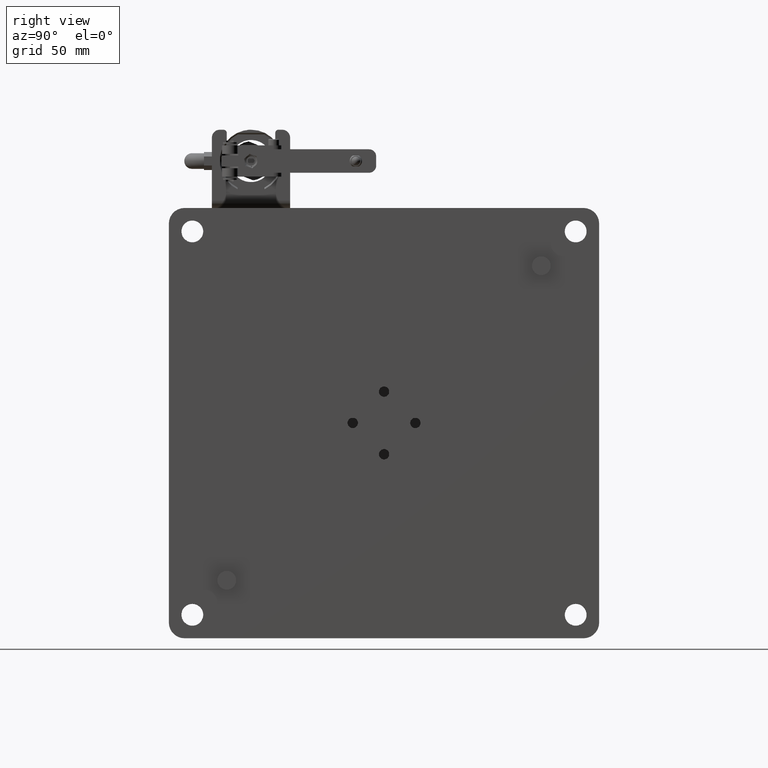
[diagram: clean part render]
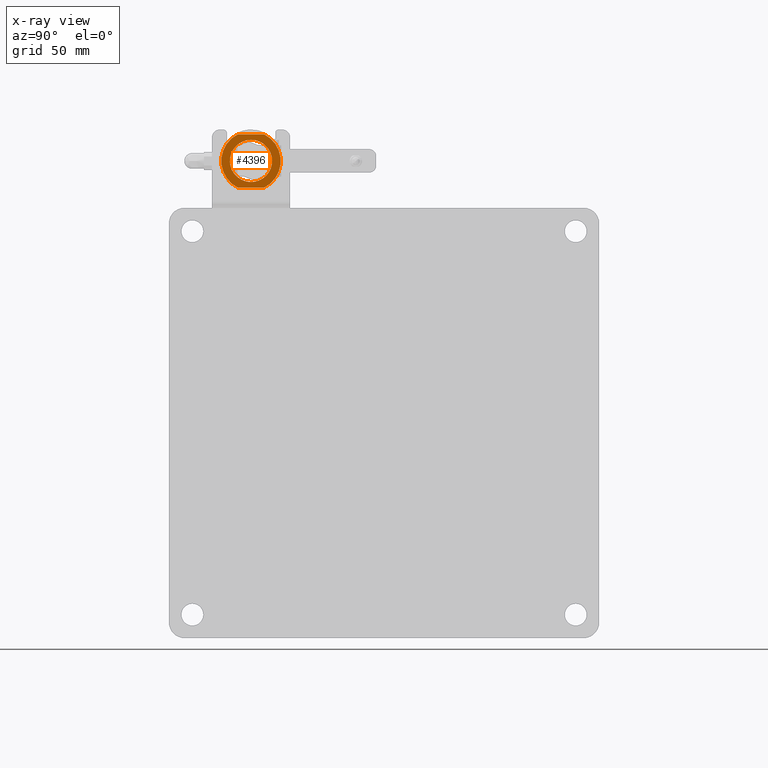
[diagram: x-ray — body ghosted, one internal face saturated and labeled with its STEP entity id]
A machine part, right view, then the same camera in x-ray: the body is ghosted and one INTERNAL B-rep face — a face not visible from any outside direction — is saturated and labeled: STEP entity #4396.
In plain terms, the highlighted planar face has unit normal (1, 0, -0).
Its self-contained STEP definition (entity closure, byte-faithful):
#12 = CARTESIAN_POINT ( 'NONE',  ( 664.2532529064191067, -96.07306532472159688, 607.0684939441116512 ) ) ;
#121 = CARTESIAN_POINT ( 'NONE',  ( 664.2532529064191067, -108.4737407812302195, 588.2302575869665588 ) ) ;
#145 = CARTESIAN_POINT ( 'NONE',  ( 664.2532529064189930, -84.35452412846652237, 586.8588519456836821 ) ) ;
#390 = CARTESIAN_POINT ( 'NONE',  ( 664.2532529064189930, -83.25665673771518982, 589.3169529376407354 ) ) ;
#500 = CARTESIAN_POINT ( 'NONE',  ( 664.2532529064191067, -98.17389727948544476, 580.2322448031196700 ) ) ;
#527 = CARTESIAN_POINT ( 'NONE',  ( 664.2532529064188793, -82.60120914430252981, 592.5392296786974384 ) ) ;
#553 = EDGE_CURVE ( 'NONE', #24710, #6749, #9712, .T. ) ;
#756 = CARTESIAN_POINT ( 'NONE',  ( 664.2532529064189930, -107.7916065210287826, 600.2781359423477170 ) ) ;
#877 = CARTESIAN_POINT ( 'NONE',  ( 664.2532529064189930, -109.3429934473373777, 591.0866306092170817 ) ) ;
#941 = PLANE ( 'NONE',  #16142 ) ;
#1009 = CARTESIAN_POINT ( 'NONE',  ( 664.2532529064191067, -96.89896939427664790, 607.0684939441116512 ) ) ;
#1143 = CARTESIAN_POINT ( 'NONE',  ( 664.2532529064191067, -108.6651110334980928, 598.4358475237762605 ) ) ;
#1263 = CARTESIAN_POINT ( 'NONE',  ( 664.2532529064193341, -109.3376438358374827, 591.0581809685646704 ) ) ;
#1594 = CARTESIAN_POINT ( 'NONE',  ( 664.2532529064192204, -93.18622059225839394, 606.7634977363757116 ) ) ;
#1686 = VERTEX_POINT ( 'NONE', #17928 ) ;
#1716 = CARTESIAN_POINT ( 'NONE',  ( 664.2532529064191067, -91.82152431925338476, 606.3849025314070786 ) ) ;
#1788 = CARTESIAN_POINT ( 'NONE',  ( 664.2532529064188793, -96.07306532472159688, 593.5684939441116512 ) ) ;
#1854 = CARTESIAN_POINT ( 'NONE',  ( 664.2532529064191067, -93.79430693993700174, 606.8749568625424899 ) ) ;
#1984 = CARTESIAN_POINT ( 'NONE',  ( 664.2532529064192204, -84.83769297524328579, 601.0531308758991145 ) ) ;
#2075 = CARTESIAN_POINT ( 'NONE',  ( 664.2532529064191067, -106.9098168921363623, 585.5116640252850857 ) ) ;
#2102 = CARTESIAN_POINT ( 'NONE',  ( 664.2532529064189930, -94.42832751975839756, 580.1436197862370818 ) ) ;
#2236 = EDGE_CURVE ( 'NONE', #6749, #24710, #8722, .T. ) ;
#2367 = CARTESIAN_POINT ( 'NONE',  ( 664.2532529064189930, -90.73482896799981745, 581.1678184874015187 ) ) ;
#2491 = CARTESIAN_POINT ( 'NONE',  ( 664.2532529064191067, -82.79346668349913330, 591.1388892069015810 ) ) ;
#2527 = DIRECTION ( 'NONE',  ( 1.000000000000000000, 1.152377402949102138E-16, -3.548399595119429505E-15 ) ) ;
#2556 = EDGE_LOOP ( 'NONE', ( #17974, #11038, #9817, #12262 ) ) ;
#2627 = CARTESIAN_POINT ( 'NONE',  ( 664.2532529064192204, -91.05078697320418257, 581.0374324809063182 ) ) ;
#2730 = DIRECTION ( 'NONE',  ( 8.103763707314202734E-17, -1.000000000000000000, -8.103763707314202734E-17 ) ) ;
#2736 = CARTESIAN_POINT ( 'NONE',  ( 664.2532529064192204, -109.2680691167340825, 596.4553386774631463 ) ) ;
#2846 = CARTESIAN_POINT ( 'NONE',  ( 664.2532529064191067, -96.07306532472159688, 607.0684939441116512 ) ) ;
#2861 = CARTESIAN_POINT ( 'NONE',  ( 664.2532529064191067, -109.5449215051501284, 594.5977582095507614 ) ) ;
#2987 = CARTESIAN_POINT ( 'NONE',  ( 664.2532529064189930, -98.63712043785820072, 606.8227900301882300 ) ) ;
#3028 = CARTESIAN_POINT ( 'NONE',  ( 664.2532529064189930, -96.07306532472159688, 580.0684939441117649 ) ) ;
#3122 = CARTESIAN_POINT ( 'NONE',  ( 664.2532529064189930, -101.1482185122444122, 606.0782358837153652 ) ) ;
#3253 = CARTESIAN_POINT ( 'NONE',  ( 664.2532529064191067, -100.0161496265642853, 606.4928903147942947 ) ) ;
#3365 = DIRECTION ( 'NONE',  ( 0.000000000000000000, 0.000000000000000000, -1.000000000000000000 ) ) ;
#3371 = CARTESIAN_POINT ( 'NONE',  ( 664.2532529064191067, -96.07306532472159688, 607.0684939441116512 ) ) ;
#3433 = CARTESIAN_POINT ( 'NONE',  ( 664.2532529064188793, -83.59554159296058629, 598.7228344491702501 ) ) ;
#3568 = CARTESIAN_POINT ( 'NONE',  ( 664.2532529064191067, -83.83277624664265204, 599.2710237833236988 ) ) ;
#3816 = CARTESIAN_POINT ( 'NONE',  ( 664.2532529064192204, -93.71811177221816536, 606.8615310528659847 ) ) ;
#3951 = CARTESIAN_POINT ( 'NONE',  ( 664.2532529064192204, -88.78139747230650869, 604.9300437883186987 ) ) ;
#4057 = CARTESIAN_POINT ( 'NONE',  ( 664.2532529064189930, -100.9404189042696487, 580.9764482353143649 ) ) ;
#4081 = CARTESIAN_POINT ( 'NONE',  ( 664.2532529064191067, -85.86839279253047152, 584.6813359361818812 ) ) ;
#4177 = CARTESIAN_POINT ( 'NONE',  ( 664.2532529064191067, -98.95991005758840231, 580.3734901520123231 ) ) ;
#4201 = CARTESIAN_POINT ( 'NONE',  ( 664.2532529064188793, -89.06742000778773161, 582.0194946709842725 ) ) ;
#4307 = CARTESIAN_POINT ( 'NONE',  ( 664.2532529064191067, -97.10248293827997657, 580.0966661349089009 ) ) ;
#4332 = CARTESIAN_POINT ( 'NONE',  ( 664.2532529064193341, -82.80848681361099750, 596.0788069196781862 ) ) ;
#4396 = ADVANCED_FACE ( 'NONE', ( #24714, #16864 ), #941, .T. ) ;
#4463 = CARTESIAN_POINT ( 'NONE',  ( 664.2532529064187656, -82.64822361883368274, 595.2134070771809320 ) ) ;
#4585 = CARTESIAN_POINT ( 'NONE',  ( 664.2532529064191067, -88.63802285980150941, 582.3002495266196092 ) ) ;
#4688 = CARTESIAN_POINT ( 'NONE',  ( 664.2532529064189930, -102.4901892403632786, 605.4612509535967320 ) ) ;
#4828 = CARTESIAN_POINT ( 'NONE',  ( 664.2532529064192204, -97.71780313013131547, 606.9933681019864480 ) ) ;
#4950 = CARTESIAN_POINT ( 'NONE',  ( 664.2532529064189930, -107.5865331390049136, 600.6192787629618124 ) ) ;
#5077 = CARTESIAN_POINT ( 'NONE',  ( 664.2532529064191067, -98.90511161102239157, 606.7689137924636498 ) ) ;
#5213 = CARTESIAN_POINT ( 'NONE',  ( 664.2532529064192204, -103.0787106419318917, 605.1174932170904412 ) ) ;
#5400 = CARTESIAN_POINT ( 'NONE',  ( 664.2532529064191067, -95.66029106082912392, 607.0684939441117649 ) ) ;
#5533 = CARTESIAN_POINT ( 'NONE',  ( 664.2532529064192204, -83.53099269806708094, 598.5632045626948639 ) ) ;
#5671 = CARTESIAN_POINT ( 'NONE',  ( 664.2532529064193341, -92.54936577714380519, 606.6134736741956885 ) ) ;
#5799 = CARTESIAN_POINT ( 'NONE',  ( 664.2532529064188793, -82.87264547632985057, 596.4005402303570236 ) ) ;
#5931 = CARTESIAN_POINT ( 'NONE',  ( 664.2532529064192204, -90.67976775461838201, 605.9527895153042891 ) ) ;
#6068 = CARTESIAN_POINT ( 'NONE',  ( 664.2532529064187656, -82.87806153267766263, 590.6816492108843022 ) ) ;
#6069 = CIRCLE ( 'NONE', #20742, 19.00000000000001776 ) ;
#6198 = CARTESIAN_POINT ( 'NONE',  ( 664.2532529064189930, -93.42846663585076783, 580.3298599580381278 ) ) ;
#6296 = CARTESIAN_POINT ( 'NONE',  ( 664.2532529064189930, -107.1452232291935900, 585.8430878409186562 ) ) ;
#6319 = CARTESIAN_POINT ( 'NONE',  ( 664.2532529064191067, -91.51069937791054087, 580.8552408766937560 ) ) ;
#6426 = CARTESIAN_POINT ( 'NONE',  ( 664.2532529064192204, -105.9483986393802866, 584.3519178907156402 ) ) ;
#6451 = CARTESIAN_POINT ( 'NONE',  ( 664.2532529064188793, -93.50901021167800309, 580.3141978580075602 ) ) ;
#6557 = CARTESIAN_POINT ( 'NONE',  ( 664.2532529064189930, -101.4663628946068314, 581.1841983728280638 ) ) ;
#6580 = CARTESIAN_POINT ( 'NONE',  ( 664.2532529064192204, -82.81876923863268303, 596.1325490572312447 ) ) ;
#6678 = CARTESIAN_POINT ( 'NONE',  ( 664.2532529064189930, -98.71766401375124644, 606.8071279301383356 ) ) ;
#6749 = VERTEX_POINT ( 'NONE', #2846 ) ;
#6808 = CARTESIAN_POINT ( 'NONE',  ( 664.2532529064191067, -101.0677759432998073, 606.1105665707697199 ) ) ;
#6938 = CARTESIAN_POINT ( 'NONE',  ( 664.2532529064192204, -100.6354312719197566, 606.2817470114143816 ) ) ;
#7059 = CARTESIAN_POINT ( 'NONE',  ( 664.2532529064192204, -106.2777378564464641, 602.4556519524118130 ) ) ;
#7189 = CARTESIAN_POINT ( 'NONE',  ( 664.2532529064187656, -108.6946204615896079, 598.3592853693077132 ) ) ;
#7230 = EDGE_CURVE ( 'NONE', #23306, #23205, #14863, .T. ) ;
#7531 = CARTESIAN_POINT ( 'NONE',  ( 664.2532529064189930, -96.07306532472159688, 576.5684939441116512 ) ) ;
#7640 = CARTESIAN_POINT ( 'NONE',  ( 664.2532529064192204, -89.36342332715581449, 605.2870351408211036 ) ) ;
#7776 = CARTESIAN_POINT ( 'NONE',  ( 664.2532529064189930, -83.35981225736718159, 598.1308598912378329 ) ) ;
#8034 = CARTESIAN_POINT ( 'NONE',  ( 664.2532529064191067, -88.49183569814766770, 582.3980591650255292 ) ) ;
#8136 = EDGE_CURVE ( 'NONE', #8356, #23306, #19136, .T. ) ;
#8167 = CARTESIAN_POINT ( 'NONE',  ( 664.2532529064189930, -96.07306532472159688, 580.0684939441117649 ) ) ;
#8306 = EDGE_CURVE ( 'NONE', #1686, #8356, #6069, .T. ) ;
#8356 = VERTEX_POINT ( 'NONE', #21756 ) ;
#8387 = CARTESIAN_POINT ( 'NONE',  ( 664.2532529064191067, -98.50267006195413444, 580.2888953028926835 ) ) ;
#8410 = CARTESIAN_POINT ( 'NONE',  ( 664.2532529064188793, -91.07835470611917117, 581.0264213174609722 ) ) ;
#8546 = CARTESIAN_POINT ( 'NONE',  ( 664.2532529064191067, -83.50085192237705201, 588.6501440347800553 ) ) ;
#8645 = CARTESIAN_POINT ( 'NONE',  ( 664.2532529064191067, -119.8543008520108373, 610.5684939441118786 ) ) ;
#8722 = B_SPLINE_CURVE_WITH_KNOTS ( 'NONE', 3,
 ( #12, #5400, #13432, #21423, #19603, #1854, #3816, #11706, #15408, #1594, #5671, #1716, #21560, #13703, #15669, #15928, #15805, #5931, #21950, #7640, #11449, #9748, #3951, #13569, #17764, #11976, #11839, #19726, #9886, #19996, #23526, #1984, #18021, #9488, #10012, #3568, #23399, #3433, #19467, #25749, #5533, #7776, #11584, #23788, #5799, #9614, #6580, #4332, #16198, #4463, #18147, #20382, #527, #24179, #16575, #18396, #14343, #20500, #2491, #6068, #12493, #390, #10514, #18527, #14602, #8546, #22325, #10393, #10264, #145, #24551, #14097, #18663, #24050, #22078, #4081, #12229, #22584, #22456, #12361, #8034, #12107, #4585, #4201, #20122, #12616, #2367, #24295, #20623, #2627, #8410, #6319, #16434, #24422, #10646, #6198, #6451, #16060, #14469, #2102, #10135, #8167 ),
 .UNSPECIFIED., .F., .F.,
 ( 4, 1, 1, 1, 1, 2, 2, 1, 1, 1, 1, 2, 2, 1, 1, 1, 2, 2, 2, 1, 1, 1, 2, 2, 1, 1, 1, 1, 2, 2, 1, 1, 1, 1, 2, 2, 2, 1, 1, 1, 1, 2, 2, 1, 1, 1, 1, 2, 2, 1, 1, 1, 2, 2, 2, 1, 1, 1, 2, 2, 1, 1, 1, 1, 2, 2, 1, 1, 1, 1, 2, 2, 4 ),
 ( 0.000000000000000000, 0.03124999999996835170, 0.04687499999995305144, 0.05468749999994546029, 0.05859374999994166472, 0.06054687499994099859, 0.06249999999994033939, 0.09374999999993705035, 0.1093749999999369948, 0.1171874999999387157, 0.1210937499999395761, 0.1230468749999414219, 0.1249999999999432676, 0.1562499999999638067, 0.1718749999999744926, 0.1796874999999821809, 0.1835937499999840128, 0.1874999999999858447, 0.2499999999999764078, 0.2812499999999720224, 0.2968749999999698019, 0.3046874999999716893, 0.3085937499999695799, 0.3124999999999674705, 0.3437499999999368283, 0.3593749999999248934, 0.3671874999999154565, 0.3710937499999072409, 0.3730468749999066302, 0.3749999999999060196, 0.4062499999997888911, 0.4218749999997304934, 0.4296874999997012945, 0.4335937499996868061, 0.4355468749996795341, 0.4374999999996722622, 0.4999999999994615973, 0.5312499999993562927, 0.5468749999993035571, 0.5546874999992771338, 0.5585937499992639221, 0.5605468749992571498, 0.5624999999992503774, 0.5937499999991802113, 0.6093749999991452393, 0.6171874999991315836, 0.6210937499991248112, 0.6230468749991254773, 0.6249999999991260324, 0.6562499999991673327, 0.6718749999991913135, 0.6796874999992033040, 0.6835937499992125188, 0.6874999999992218447, 0.7499999999993587352, 0.7812499999994269029, 0.7968749999994586553, 0.8046874999994745314, 0.8085937499994841904, 0.8124999999994938493, 0.8437499999995851097, 0.8593749999996311839, 0.8671874999996538325, 0.8710937499996631583, 0.8730468749996692646, 0.8749999999996753708, 0.9062499999997593036, 0.9218749999998008260, 0.9296874999998210320, 0.9335937499998306910, 0.9355468749998354649, 0.9374999999998402389, 1.000000000000000000 ),
 .UNSPECIFIED. ) ;
#8772 = CARTESIAN_POINT ( 'NONE',  ( 664.2532529064189930, -104.7727910238318287, 603.9100583175627435 ) ) ;
#8898 = CARTESIAN_POINT ( 'NONE',  ( 664.2532529064192204, -108.6452787270622906, 598.4868438534588222 ) ) ;
#9035 = CARTESIAN_POINT ( 'NONE',  ( 664.2532529064189930, -109.3273614108208420, 591.0044388310299155 ) ) ;
#9165 = CARTESIAN_POINT ( 'NONE',  ( 664.2532529064192204, -108.8894739116867214, 597.8200349507458213 ) ) ;
#9413 = CARTESIAN_POINT ( 'NONE',  ( 664.2532529064191067, -104.5583466989602783, 610.5684939441118786 ) ) ;
#9488 = CARTESIAN_POINT ( 'NONE',  ( 664.2532529064191067, -84.52406605183860222, 600.5741392615019549 ) ) ;
#9614 = CARTESIAN_POINT ( 'NONE',  ( 664.2532529064188793, -82.83443133867379515, 596.2130926331118417 ) ) ;
#9712 = B_SPLINE_CURVE_WITH_KNOTS ( 'NONE', 3,
 ( #20224, #18502, #4307, #24157, #500, #14198, #22179, #12340, #8387, #4177, #14071, #24524, #10619, #22298, #4057, #18634, #14321, #6557, #24396, #10370, #24276, #12085, #14575, #12204, #10241, #16410, #6426, #14447, #2075, #6296, #20597, #22558, #12589, #10111, #18122, #18251, #121, #19143, #11135, #23208, #17184, #18879, #22950, #10871, #13247, #16929, #9035, #1263, #877, #10748, #20857, #18764, #2861, #11268, #22684, #19275, #20731, #25161, #12855, #2736, #13110, #9165, #17064, #7189, #1143, #8898, #12726, #25041, #14958, #756, #4950, #11000, #15081, #12974, #21106, #7059, #24652, #8772, #16799, #15216, #19010, #23070, #14697, #5213, #4688, #21238, #24911, #16678, #3122, #24777, #6808, #6938, #3253, #20972, #5077, #6678, #2987, #14827, #22821, #4828, #1009, #3371 ),
 .UNSPECIFIED., .F., .F.,
 ( 4, 1, 1, 1, 1, 2, 2, 1, 1, 1, 1, 2, 2, 1, 1, 1, 2, 2, 2, 1, 1, 1, 2, 2, 1, 1, 1, 1, 2, 2, 1, 1, 1, 1, 2, 2, 2, 1, 1, 1, 1, 2, 2, 1, 1, 1, 1, 2, 2, 1, 1, 1, 2, 2, 2, 1, 1, 1, 2, 2, 1, 1, 1, 1, 2, 2, 1, 1, 1, 1, 2, 2, 4 ),
 ( 0.000000000000000000, 0.03125000000002731843, 0.04687500000004044681, 0.05468750000004811429, 0.05859375000005194456, 0.06054687500005406092, 0.06250000000005617729, 0.09375000000008142098, 0.1093750000000924816, 0.1171875000000992817, 0.1210937500001022238, 0.1230468750001027373, 0.1250000000001032507, 0.1562500000000920652, 0.1718750000000869027, 0.1796875000000843214, 0.1835937500000810185, 0.1875000000000777156, 0.2500000000000226485, 0.2812499999999947820, 0.2968749999999805711, 0.3046874999999737432, 0.3085937499999731326, 0.3124999999999724665, 0.3437499999999611422, 0.3593749999999520939, 0.3671874999999441003, 0.3710937499999401035, 0.3730468749999346079, 0.3749999999999290567, 0.4062499999998242517, 0.4218749999997719602, 0.4296874999997498112, 0.4335937499997385980, 0.4355468749997330469, 0.4374999999997274402, 0.4999999999996921352, 0.5312499999996744826, 0.5468749999996614930, 0.5546874999996549427, 0.5585937499996516120, 0.5605468749996500577, 0.5624999999996483924, 0.5937499999996432853, 0.6093749999996408429, 0.6171874999996432853, 0.6210937499996481703, 0.6230468749996542766, 0.6249999999996602718, 0.6562499999997188915, 0.6718749999997448707, 0.6796874999997576383, 0.6835937499997605249, 0.6874999999997633005, 0.7499999999998105960, 0.7812499999998314681, 0.7968749999998442357, 0.8046874999998508970, 0.8085937499998538946, 0.8124999999998568923, 0.8437499999999057421, 0.8593749999999297229, 0.8671874999999404920, 0.8710937499999444888, 0.8730468749999459321, 0.8749999999999474865, 0.9062499999999640288, 0.9218749999999716893, 0.9296874999999759082, 0.9335937499999767963, 0.9355468749999766853, 0.9374999999999766853, 1.000000000000000000 ),
 .UNSPECIFIED. ) ;
#9748 = CARTESIAN_POINT ( 'NONE',  ( 664.2532529064192204, -88.87755371580369967, 604.9911947634808485 ) ) ;
#9817 = ORIENTED_EDGE ( 'NONE', *, *, #8136, .T. ) ;
#9886 = CARTESIAN_POINT ( 'NONE',  ( 664.2532529064191067, -85.23631375723924464, 601.6253238629259386 ) ) ;
#10012 = CARTESIAN_POINT ( 'NONE',  ( 664.2532529064189930, -84.18030831540374948, 599.9856178600687144 ) ) ;
#10111 = CARTESIAN_POINT ( 'NONE',  ( 664.2532529064191067, -107.6220645975857764, 586.5628486266247137 ) ) ;
#10135 = CARTESIAN_POINT ( 'NONE',  ( 664.2532529064188793, -95.24716125561299407, 580.0684939441115375 ) ) ;
#10241 = CARTESIAN_POINT ( 'NONE',  ( 664.2532529064189930, -104.2401817280227903, 582.7788171876567276 ) ) ;
#10264 = CARTESIAN_POINT ( 'NONE',  ( 664.2532529064189930, -83.97124245685881760, 587.5549254931430596 ) ) ;
#10370 = CARTESIAN_POINT ( 'NONE',  ( 664.2532529064189930, -102.7827073220012437, 581.8499527472828277 ) ) ;
#10393 = CARTESIAN_POINT ( 'NONE',  ( 664.2532529064189930, -83.68876975387514960, 588.1751963733513549 ) ) ;
#10514 = CARTESIAN_POINT ( 'NONE',  ( 664.2532529064188793, -83.38432807655060230, 588.9568211657158372 ) ) ;
#10619 = CARTESIAN_POINT ( 'NONE',  ( 664.2532529064192204, -100.6847381028415072, 580.8797566958982088 ) ) ;
#10646 = CARTESIAN_POINT ( 'NONE',  ( 664.2532529064189930, -93.24101903871722641, 580.3680740956712043 ) ) ;
#10748 = CARTESIAN_POINT ( 'NONE',  ( 664.2532529064188793, -109.4979070305986966, 591.9235808111296819 ) ) ;
#10871 = CARTESIAN_POINT ( 'NONE',  ( 664.2532529064189930, -109.1903799476175294, 590.3635021161516079 ) ) ;
#11000 = CARTESIAN_POINT ( 'NONE',  ( 664.2532529064189930, -107.4957661439492966, 600.7640055532648375 ) ) ;
#11038 = ORIENTED_EDGE ( 'NONE', *, *, #8306, .T. ) ;
#11135 = CARTESIAN_POINT ( 'NONE',  ( 664.2532529064191067, -108.5828072642976849, 588.4933407565223433 ) ) ;
#11253 = CARTESIAN_POINT ( 'NONE',  ( 664.2532529064191067, -96.07306532472159688, 593.5684939441116512 ) ) ;
#11268 = CARTESIAN_POINT ( 'NONE',  ( 664.2532529064189930, -109.4627455225190573, 595.3128072045182080 ) ) ;
#11449 = CARTESIAN_POINT ( 'NONE',  ( 664.2532529064191067, -89.02228050626233369, 605.0819617586294044 ) ) ;
#11584 = CARTESIAN_POINT ( 'NONE',  ( 664.2532529064189930, -83.14866895394834501, 597.5115782458278773 ) ) ;
#11706 = CARTESIAN_POINT ( 'NONE',  ( 664.2532529064191067, -93.66732810856692026, 606.8524337829209117 ) ) ;
#11839 = CARTESIAN_POINT ( 'NONE',  ( 664.2532529064191067, -86.19773201001139284, 602.7850699974981126 ) ) ;
#11976 = CARTESIAN_POINT ( 'NONE',  ( 664.2532529064189930, -87.18590731608686895, 603.7731664753936229 ) ) ;
#12085 = CARTESIAN_POINT ( 'NONE',  ( 664.2532529064192204, -103.2685769335390518, 582.1457931247008446 ) ) ;
#12107 = CARTESIAN_POINT ( 'NONE',  ( 664.2532529064193341, -88.58842839304432459, 582.3331215945481745 ) ) ;
#12204 = CARTESIAN_POINT ( 'NONE',  ( 664.2532529064191067, -103.4116604496333736, 582.2371943773474641 ) ) ;
#12229 = CARTESIAN_POINT ( 'NONE',  ( 664.2532529064188793, -86.85648927178959866, 583.6931606290490890 ) ) ;
#12262 = ORIENTED_EDGE ( 'NONE', *, *, #7230, .T. ) ;
#12340 = CARTESIAN_POINT ( 'NONE',  ( 664.2532529064191067, -98.47880254093263375, 580.2845541053025045 ) ) ;
#12361 = CARTESIAN_POINT ( 'NONE',  ( 664.2532529064189930, -88.34765922188397269, 582.4963360393303446 ) ) ;
#12493 = CARTESIAN_POINT ( 'NONE',  ( 664.2532529064188793, -83.02808559502264529, 590.0447943951967318 ) ) ;
#12589 = CARTESIAN_POINT ( 'NONE',  ( 664.2532529064191067, -107.3413097422468070, 586.1334514792606569 ) ) ;
#12616 = CARTESIAN_POINT ( 'NONE',  ( 664.2532529064188793, -90.37053548610889209, 581.3282048657117684 ) ) ;
#12726 = CARTESIAN_POINT ( 'NONE',  ( 664.2532529064192204, -108.6356977949054112, 598.5112713362265140 ) ) ;
#12855 = CARTESIAN_POINT ( 'NONE',  ( 664.2532529064189930, -109.3526639659460074, 595.9980986813137633 ) ) ;
#12915 = DIRECTION ( 'NONE',  ( -3.548399595119429505E-15, 0.000000000000000000, -1.000000000000000000 ) ) ;
#12974 = CARTESIAN_POINT ( 'NONE',  ( 664.2532529064193341, -107.4043648915175879, 600.9070890689901034 ) ) ;
#13110 = CARTESIAN_POINT ( 'NONE',  ( 664.2532529064189930, -109.1180450543654530, 597.0921934932438262 ) ) ;
#13247 = CARTESIAN_POINT ( 'NONE',  ( 664.2532529064189930, -109.2734851731463266, 590.7364476579857637 ) ) ;
#13376 = ORIENTED_EDGE ( 'NONE', *, *, #2236, .T. ) ;
#13432 = CARTESIAN_POINT ( 'NONE',  ( 664.2532529064191067, -95.04364771196424044, 607.0403217533145153 ) ) ;
#13569 = CARTESIAN_POINT ( 'NONE',  ( 664.2532529064191067, -88.73447019981362871, 604.8997935108849333 ) ) ;
#13703 = CARTESIAN_POINT ( 'NONE',  ( 664.2532529064191067, -91.28227389988997231, 606.1900490810827478 ) ) ;
#14071 = CARTESIAN_POINT ( 'NONE',  ( 664.2532529064188793, -99.59676487300563963, 580.5235142143152416 ) ) ;
#14097 = CARTESIAN_POINT ( 'NONE',  ( 664.2532529064188793, -84.65036450551217229, 586.3729823348909349 ) ) ;
#14198 = CARTESIAN_POINT ( 'NONE',  ( 664.2532529064191067, -98.35182370969391741, 580.2620310256808125 ) ) ;
#14321 = CARTESIAN_POINT ( 'NONE',  ( 664.2532529064191067, -101.0158427168818775, 581.0058614739525638 ) ) ;
#14343 = CARTESIAN_POINT ( 'NONE',  ( 664.2532529064192204, -82.78002432125818189, 591.2135614426388202 ) ) ;
#14447 = CARTESIAN_POINT ( 'NONE',  ( 664.2532529064188793, -106.4146296977898061, 584.8687682445972769 ) ) ;
#14458 = VECTOR ( 'NONE', #2730, 1000.000000000000000 ) ;
#14469 = CARTESIAN_POINT ( 'NONE',  ( 664.2532529064188793, -93.59119651082637859, 580.2985668356207043 ) ) ;
#14555 = CARTESIAN_POINT ( 'NONE',  ( 664.2532529064191067, -104.5583466989603920, 576.5684939441116512 ) ) ;
#14575 = CARTESIAN_POINT ( 'NONE',  ( 664.2532529064192204, -103.3647331770838491, 582.2069440998822074 ) ) ;
#14602 = CARTESIAN_POINT ( 'NONE',  ( 664.2532529064189930, -83.48101961593755505, 588.7011403644771690 ) ) ;
#14697 = CARTESIAN_POINT ( 'NONE',  ( 664.2532529064191067, -103.5081077896071378, 604.8367383616227926 ) ) ;
#14827 = CARTESIAN_POINT ( 'NONE',  ( 664.2532529064192204, -98.58337830029655890, 606.8330724552158699 ) ) ;
#14863 = CIRCLE ( 'NONE', #16535, 19.00000000000023803 ) ;
#14958 = CARTESIAN_POINT ( 'NONE',  ( 664.2532529064191067, -108.1748881926539241, 599.5820623948237653 ) ) ;
#15081 = CARTESIAN_POINT ( 'NONE',  ( 664.2532529064189930, -107.4346151688546200, 600.8601617966504591 ) ) ;
#15216 = CARTESIAN_POINT ( 'NONE',  ( 664.2532529064192204, -103.7984714277377662, 604.6406518487514177 ) ) ;
#15408 = CARTESIAN_POINT ( 'NONE',  ( 664.2532529064189930, -93.64346058746382084, 606.8480925853203871 ) ) ;
#15669 = CARTESIAN_POINT ( 'NONE',  ( 664.2532529064189930, -91.20571174527051994, 606.1605396529487280 ) ) ;
#15805 = CARTESIAN_POINT ( 'NONE',  ( 664.2532529064191067, -91.13028793257498705, 606.1311264142765367 ) ) ;
#15928 = CARTESIAN_POINT ( 'NONE',  ( 664.2532529064192204, -91.15471541548379264, 606.1407073464836230 ) ) ;
#16060 = CARTESIAN_POINT ( 'NONE',  ( 664.2532529064191067, -93.56275234919422701, 580.3039154329932217 ) ) ;
#16142 = AXIS2_PLACEMENT_3D ( 'NONE', #18701, #2527, #12915 ) ;
#16198 = CARTESIAN_POINT ( 'NONE',  ( 664.2532529064191067, -82.80313720210615713, 596.0503572790038334 ) ) ;
#16410 = CARTESIAN_POINT ( 'NONE',  ( 664.2532529064188793, -104.9602233334591688, 583.3638214128484378 ) ) ;
#16434 = CARTESIAN_POINT ( 'NONE',  ( 664.2532529064189930, -92.12998102355635410, 580.6440975732274410 ) ) ;
#16535 = AXIS2_PLACEMENT_3D ( 'NONE', #11253, #21488, #19659 ) ;
#16575 = CARTESIAN_POINT ( 'NONE',  ( 664.2532529064189930, -82.73680377132232877, 591.4677290791611313 ) ) ;
#16678 = CARTESIAN_POINT ( 'NONE',  ( 664.2532529064192204, -101.2274058297066972, 606.0460176759119122 ) ) ;
#16799 = CARTESIAN_POINT ( 'NONE',  ( 664.2532529064191067, -104.1298952432451301, 604.4052455118138596 ) ) ;
#16864 = FACE_BOUND ( 'NONE', #20854, .T. ) ;
#16929 = CARTESIAN_POINT ( 'NONE',  ( 664.2532529064189930, -109.3116993107870627, 590.9238952551756938 ) ) ;
#17064 = CARTESIAN_POINT ( 'NONE',  ( 664.2532529064186519, -108.7618025728684188, 598.1801667226023937 ) ) ;
#17184 = CARTESIAN_POINT ( 'NONE',  ( 664.2532529064191067, -108.6151379513734412, 588.5737833255191163 ) ) ;
#17262 = LINE ( 'NONE', #7531, #18245 ) ;
#17402 = DIRECTION ( 'NONE',  ( -1.152377402949102138E-16, 1.000000000000000000, 4.089095510049373665E-31 ) ) ;
#17572 = DIRECTION ( 'NONE',  ( 1.000000000000000000, 0.000000000000000000, 0.000000000000000000 ) ) ;
#17764 = CARTESIAN_POINT ( 'NONE',  ( 664.2532529064189930, -87.90594892135956684, 604.3581707004216241 ) ) ;
#17928 = CARTESIAN_POINT ( 'NONE',  ( 664.2532529064188793, -87.58778395048305754, 576.5684939441116512 ) ) ;
#17974 = ORIENTED_EDGE ( 'NONE', *, *, #23616, .T. ) ;
#18021 = CARTESIAN_POINT ( 'NONE',  ( 664.2532529064191067, -84.80482090719871735, 601.0035364089746963 ) ) ;
#18122 = CARTESIAN_POINT ( 'NONE',  ( 664.2532529064189930, -107.9658223340063898, 587.1513700279857630 ) ) ;
#18147 = CARTESIAN_POINT ( 'NONE',  ( 664.2532529064189930, -82.57309774896866372, 594.3938672177902163 ) ) ;
#18245 = VECTOR ( 'NONE', #17402, 1000.000000000000000 ) ;
#18251 = CARTESIAN_POINT ( 'NONE',  ( 664.2532529064188793, -108.3133544027757580, 587.8659641047726154 ) ) ;
#18396 = CARTESIAN_POINT ( 'NONE',  ( 664.2532529064188793, -82.76659575678704073, 591.2897715001106462 ) ) ;
#18502 = CARTESIAN_POINT ( 'NONE',  ( 664.2532529064191067, -96.48583958907182989, 580.0684939441116512 ) ) ;
#18527 = CARTESIAN_POINT ( 'NONE',  ( 664.2532529064191067, -83.45151018784062558, 588.7777025189667484 ) ) ;
#18634 = CARTESIAN_POINT ( 'NONE',  ( 664.2532529064191067, -100.9914152340091107, 580.9962805417601430 ) ) ;
#18663 = CARTESIAN_POINT ( 'NONE',  ( 664.2532529064191067, -84.71151548059819447, 586.2768260915373730 ) ) ;
#18701 = CARTESIAN_POINT ( 'NONE',  ( 664.2532529064191067, -96.07306532472159688, 616.5684939441117649 ) ) ;
#18764 = CARTESIAN_POINT ( 'NONE',  ( 664.2532529064189930, -109.5730815368504665, 593.9811805809653151 ) ) ;
#18879 = CARTESIAN_POINT ( 'NONE',  ( 664.2532529064188793, -108.7863183921190853, 589.0061279971416752 ) ) ;
#19010 = CARTESIAN_POINT ( 'NONE',  ( 664.2532529064189930, -103.6542949514029885, 604.7389287231128492 ) ) ;
#19136 = LINE ( 'NONE', #8645, #14458 ) ;
#19143 = CARTESIAN_POINT ( 'NONE',  ( 664.2532529064191067, -108.5505890564748199, 588.4141534390131483 ) ) ;
#19275 = CARTESIAN_POINT ( 'NONE',  ( 664.2532529064189930, -109.3795348926583841, 595.8472163881185679 ) ) ;
#19467 = CARTESIAN_POINT ( 'NONE',  ( 664.2532529064192204, -83.56332338514101821, 598.6436471316779944 ) ) ;
#19603 = CARTESIAN_POINT ( 'NONE',  ( 664.2532529064191067, -93.97223337030820289, 606.9047430851040872 ) ) ;
#19659 = DIRECTION ( 'NONE',  ( 0.000000000000000000, 0.000000000000000000, -1.000000000000000000 ) ) ;
#19726 = CARTESIAN_POINT ( 'NONE',  ( 664.2532529064191067, -85.73150095156337613, 602.2682196436091999 ) ) ;
#19976 = ORIENTED_EDGE ( 'NONE', *, *, #553, .T. ) ;
#19996 = CARTESIAN_POINT ( 'NONE',  ( 664.2532529064192204, -85.00090742021023971, 601.2939000472972566 ) ) ;
#20122 = CARTESIAN_POINT ( 'NONE',  ( 664.2532529064189930, -89.65594140956369529, 581.6757369343663413 ) ) ;
#20224 = CARTESIAN_POINT ( 'NONE',  ( 664.2532529064189930, -96.07306532472159688, 580.0684939441117649 ) ) ;
#20382 = CARTESIAN_POINT ( 'NONE',  ( 664.2532529064187656, -82.57304911259814162, 593.1558073072721982 ) ) ;
#20500 = CARTESIAN_POINT ( 'NONE',  ( 664.2532529064189930, -82.78912349106127522, 591.1627675101921113 ) ) ;
#20597 = CARTESIAN_POINT ( 'NONE',  ( 664.2532529064188793, -107.2435001036217415, 585.9872643173235929 ) ) ;
#20623 = CARTESIAN_POINT ( 'NONE',  ( 664.2532529064187656, -90.99791213726517469, 581.0587520044723533 ) ) ;
#20731 = CARTESIAN_POINT ( 'NONE',  ( 664.2532529064191067, -109.3661063281863051, 595.9234264455881203 ) ) ;
#20742 = AXIS2_PLACEMENT_3D ( 'NONE', #1788, #17572, #3365 ) ;
#20854 = EDGE_LOOP ( 'NONE', ( #19976, #13376 ) ) ;
#20857 = CARTESIAN_POINT ( 'NONE',  ( 664.2532529064189930, -109.5730329004636872, 592.7431206704047781 ) ) ;
#20972 = CARTESIAN_POINT ( 'NONE',  ( 664.2532529064191067, -99.27805715298109135, 606.6858085668828835 ) ) ;
#21106 = CARTESIAN_POINT ( 'NONE',  ( 664.2532529064192204, -106.8627420806656403, 601.7356103479478406 ) ) ;
#21238 = CARTESIAN_POINT ( 'NONE',  ( 664.2532529064192204, -101.7755951636971332, 605.8087830223164474 ) ) ;
#21423 = CARTESIAN_POINT ( 'NONE',  ( 664.2532529064191067, -94.32863705382622754, 606.9581528634899996 ) ) ;
#21488 = DIRECTION ( 'NONE',  ( 1.000000000000000000, 0.000000000000000000, 0.000000000000000000 ) ) ;
#21560 = CARTESIAN_POINT ( 'NONE',  ( 664.2532529064191067, -91.46139254691071585, 606.2572311924511723 ) ) ;
#21756 = CARTESIAN_POINT ( 'NONE',  ( 664.2532529064189930, -87.58778395048314280, 610.5684939441118786 ) ) ;
#21950 = CARTESIAN_POINT ( 'NONE',  ( 664.2532529064189930, -90.05949687490306133, 605.6703168125800403 ) ) ;
#22078 = CARTESIAN_POINT ( 'NONE',  ( 664.2532529064187656, -85.28338856929052270, 585.4013775396664414 ) ) ;
#22179 = CARTESIAN_POINT ( 'NONE',  ( 664.2532529064191067, -98.42801887733500621, 580.2754568353575451 ) ) ;
#22298 = CARTESIAN_POINT ( 'NONE',  ( 664.2532529064188793, -100.8638567497187353, 580.9469388072079710 ) ) ;
#22325 = CARTESIAN_POINT ( 'NONE',  ( 664.2532529064193341, -83.51043285453530984, 588.6257165520062244 ) ) ;
#22456 = CARTESIAN_POINT ( 'NONE',  ( 664.2532529064189930, -88.01623540650400912, 582.7317423761667214 ) ) ;
#22558 = CARTESIAN_POINT ( 'NONE',  ( 664.2532529064187656, -107.3084376741874024, 586.0838570123219142 ) ) ;
#22584 = CARTESIAN_POINT ( 'NONE',  ( 664.2532529064188793, -87.37333962601925919, 583.2269295703365515 ) ) ;
#22684 = CARTESIAN_POINT ( 'NONE',  ( 664.2532529064189930, -109.4093268781249719, 595.6692588090734262 ) ) ;
#22821 = CARTESIAN_POINT ( 'NONE',  ( 664.2532529064192204, -98.55493413860287433, 606.8384210526027118 ) ) ;
#22950 = CARTESIAN_POINT ( 'NONE',  ( 664.2532529064191067, -108.9974616955702942, 589.6254096426687283 ) ) ;
#23070 = CARTESIAN_POINT ( 'NONE',  ( 664.2532529064191067, -103.5577022564553431, 604.8038662936304490 ) ) ;
#23205 = VERTEX_POINT ( 'NONE', #14555 ) ;
#23208 = CARTESIAN_POINT ( 'NONE',  ( 664.2532529064189930, -108.6041267878946712, 588.5462155925259822 ) ) ;
#23306 = VERTEX_POINT ( 'NONE', #9413 ) ;
#23399 = CARTESIAN_POINT ( 'NONE',  ( 664.2532529064188793, -83.67238986819855029, 598.9067303011833019 ) ) ;
#23526 = CARTESIAN_POINT ( 'NONE',  ( 664.2532529064191067, -84.90263054579769175, 601.1497235708949347 ) ) ;
#23616 = EDGE_CURVE ( 'NONE', #23205, #1686, #17262, .T. ) ;
#23788 = CARTESIAN_POINT ( 'NONE',  ( 664.2532529064187656, -82.95575070188220934, 596.7734857722762172 ) ) ;
#24050 = CARTESIAN_POINT ( 'NONE',  ( 664.2532529064189930, -84.74176575789353194, 586.2298988192715115 ) ) ;
#24157 = CARTESIAN_POINT ( 'NONE',  ( 664.2532529064189930, -97.81749359621774431, 580.1788350247333028 ) ) ;
#24179 = CARTESIAN_POINT ( 'NONE',  ( 664.2532529064189930, -82.68338512693124187, 591.8241806837235117 ) ) ;
#24276 = CARTESIAN_POINT ( 'NONE',  ( 664.2532529064189930, -103.1238501430139394, 582.0550261295240944 ) ) ;
#24295 = CARTESIAN_POINT ( 'NONE',  ( 664.2532529064189930, -90.91872481984992760, 581.0909702122504541 ) ) ;
#24396 = CARTESIAN_POINT ( 'NONE',  ( 664.2532529064191067, -102.0866337741585852, 581.4666710754838732 ) ) ;
#24422 = CARTESIAN_POINT ( 'NONE',  ( 664.2532529064189930, -92.86807349697019731, 580.4511793211888744 ) ) ;
#24524 = CARTESIAN_POINT ( 'NONE',  ( 664.2532529064189930, -100.3246063307195044, 580.7520853570322288 ) ) ;
#24551 = CARTESIAN_POINT ( 'NONE',  ( 664.2532529064191067, -84.55959751046876249, 586.5177091251490538 ) ) ;
#24652 = CARTESIAN_POINT ( 'NONE',  ( 664.2532529064193341, -105.2896413778867668, 603.4438272589893586 ) ) ;
#24710 = VERTEX_POINT ( 'NONE', #3028 ) ;
#24714 = FACE_OUTER_BOUND ( 'NONE', #2556, .T. ) ;
#24777 = CARTESIAN_POINT ( 'NONE',  ( 664.2532529064192204, -101.0953436762730746, 606.0995554072991354 ) ) ;
#24911 = CARTESIAN_POINT ( 'NONE',  ( 664.2532529064192204, -101.4113016816550470, 605.9691694007079832 ) ) ;
#25041 = CARTESIAN_POINT ( 'NONE',  ( 664.2532529064191067, -108.4573608956077635, 598.9617915147255189 ) ) ;
#25161 = CARTESIAN_POINT ( 'NONE',  ( 664.2532529064191067, -109.3570071583825865, 595.9742203780330101 ) ) ;
#25749 = CARTESIAN_POINT ( 'NONE',  ( 664.2532529064192204, -83.54200386154619196, 598.5907722956856105 ) ) ;